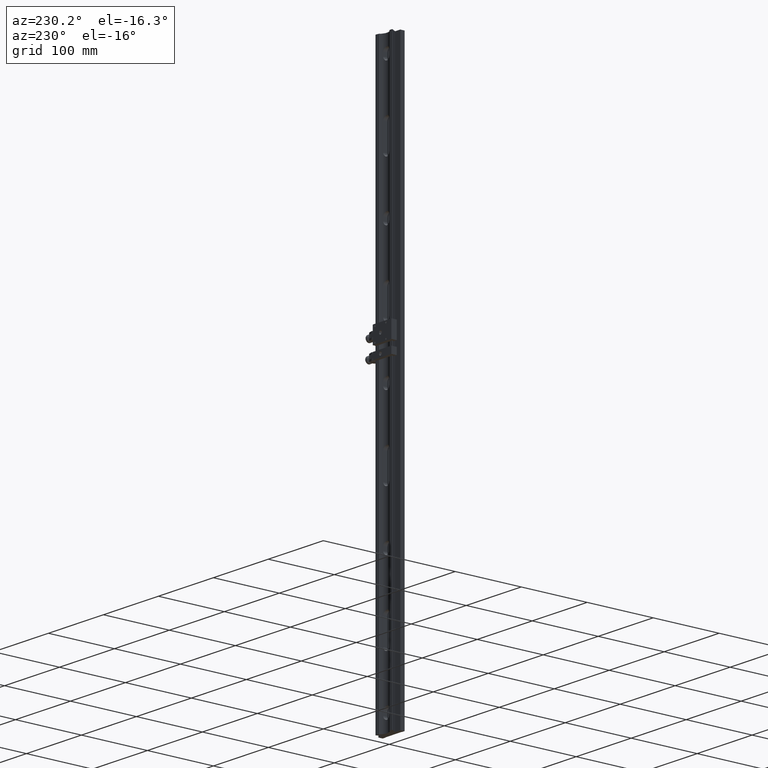
[diagram: clean part render]
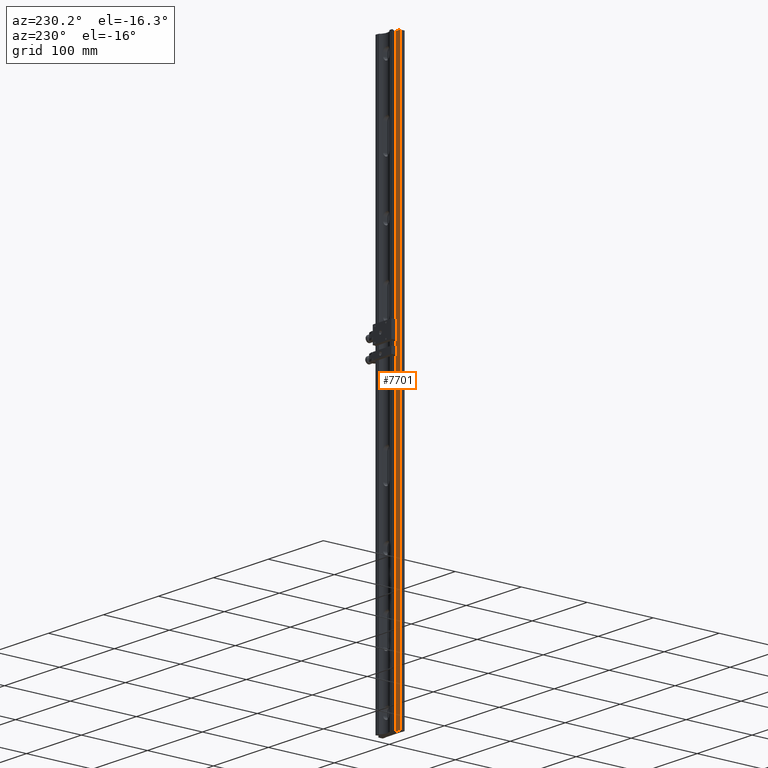
[diagram: same view with one face highlighted and labeled with its STEP entity id]
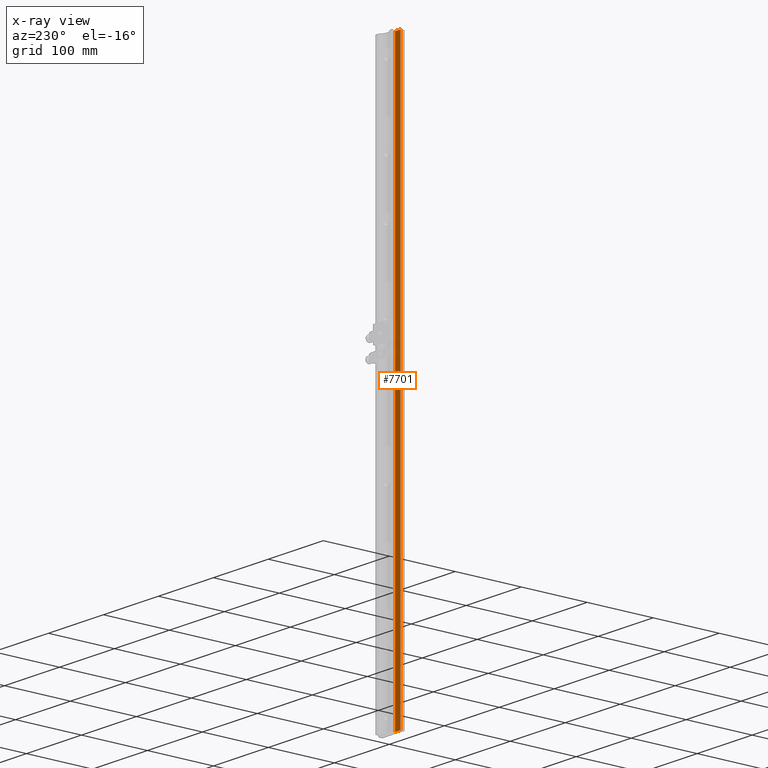
[diagram: x-ray of the same camera — body ghosted, the highlighted face saturated]
A machine part, auxiliary view. The second image highlights one B-rep face of the part: STEP entity #7701.
The next image is the same camera in x-ray: the body ghosted, the highlighted face saturated — about 0% of this face is hidden behind the body in this view.
In plain terms, the highlighted planar face has unit normal (0, -1, 0).
Its self-contained STEP definition (entity closure, byte-faithful):
#33 = CARTESIAN_POINT ( 'NONE',  ( -20.00000000000000000, 425.0000000000000000, 0.000000000000000000 ) ) ;
#115 = DIRECTION ( 'NONE',  ( 1.000000000000000000, 0.000000000000000000, -0.000000000000000000 ) ) ;
#542 = CARTESIAN_POINT ( 'NONE',  ( -10.59252271188812422, 425.0000000000000000, 0.000000000000000000 ) ) ;
#731 = EDGE_CURVE ( 'NONE', #1200, #2750, #4626, .T. ) ;
#1200 = VERTEX_POINT ( 'NONE', #3419 ) ;
#1286 = DIRECTION ( 'NONE',  ( -0.000000000000000000, -1.000000000000000000, -0.000000000000000000 ) ) ;
#1361 = CARTESIAN_POINT ( 'NONE',  ( -20.00000000000000000, 425.0000000000000000, 0.000000000000000000 ) ) ;
#2019 = PLANE ( 'NONE',  #2693 ) ;
#2693 = AXIS2_PLACEMENT_3D ( 'NONE', #1361, #8644, #115 ) ;
#2733 = EDGE_CURVE ( 'NONE', #3218, #3758, #6390, .T. ) ;
#2750 = VERTEX_POINT ( 'NONE', #7813 ) ;
#2938 = EDGE_CURVE ( 'NONE', #3758, #2750, #4545, .T. ) ;
#2939 = EDGE_CURVE ( 'NONE', #3218, #1200, #6025, .T. ) ;
#2942 = VECTOR ( 'NONE', #1286, 1000.000000000000000 ) ;
#3022 = ORIENTED_EDGE ( 'NONE', *, *, #2939, .F. ) ;
#3218 = VERTEX_POINT ( 'NONE', #542 ) ;
#3419 = CARTESIAN_POINT ( 'NONE',  ( -20.00000000000000000, 425.0000000000000000, 0.000000000000000000 ) ) ;
#3758 = VERTEX_POINT ( 'NONE', #6659 ) ;
#3956 = EDGE_LOOP ( 'NONE', ( #5788, #3967, #3022, #7715 ) ) ;
#3967 = ORIENTED_EDGE ( 'NONE', *, *, #731, .F. ) ;
#4545 = LINE ( 'NONE', #7994, #5565 ) ;
#4626 = LINE ( 'NONE', #33, #2942 ) ;
#4681 = CARTESIAN_POINT ( 'NONE',  ( -20.00000000000000000, 425.0000000000000000, 0.000000000000000000 ) ) ;
#4719 = DIRECTION ( 'NONE',  ( -1.000000000000000000, -0.000000000000000000, -0.000000000000000000 ) ) ;
#5019 = DIRECTION ( 'NONE',  ( -0.000000000000000000, -1.000000000000000000, -0.000000000000000000 ) ) ;
#5565 = VECTOR ( 'NONE', #7209, 1000.000000000000000 ) ;
#5788 = ORIENTED_EDGE ( 'NONE', *, *, #2938, .T. ) ;
#5984 = VECTOR ( 'NONE', #4719, 1000.000000000000000 ) ;
#6025 = LINE ( 'NONE', #4681, #5984 ) ;
#6390 = LINE ( 'NONE', #7654, #6828 ) ;
#6659 = CARTESIAN_POINT ( 'NONE',  ( -10.59252271188812422, -425.0000000000000000, 0.000000000000000000 ) ) ;
#6828 = VECTOR ( 'NONE', #5019, 1000.000000000000000 ) ;
#6858 = FACE_OUTER_BOUND ( 'NONE', #3956, .T. ) ;
#7209 = DIRECTION ( 'NONE',  ( -1.000000000000000000, -0.000000000000000000, -0.000000000000000000 ) ) ;
#7654 = CARTESIAN_POINT ( 'NONE',  ( -10.59252271188812422, 425.0000000000000000, 0.000000000000000000 ) ) ;
#7701 = ADVANCED_FACE ( 'NONE', ( #6858 ), #2019, .F. ) ;
#7715 = ORIENTED_EDGE ( 'NONE', *, *, #2733, .T. ) ;
#7813 = CARTESIAN_POINT ( 'NONE',  ( -20.00000000000000000, -425.0000000000000000, 0.000000000000000000 ) ) ;
#7994 = CARTESIAN_POINT ( 'NONE',  ( -20.00000000000000000, -425.0000000000000000, 0.000000000000000000 ) ) ;
#8644 = DIRECTION ( 'NONE',  ( 0.000000000000000000, 0.000000000000000000, 1.000000000000000000 ) ) ;